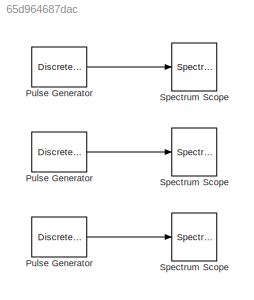
MODEL slx_65d964687dac
KIND model
BLOCK [DiscretePulseGenerator] Pulse Generator
  Period = 65536
  Ports = [0, 1]
  PulseWidth = 8192
  SampleTime = 7.629e-6
BLOCK [DiscretePulseGenerator] Pulse Generator 
  Period = 65536
  Ports = [0, 1]
  PulseWidth = 16384
  SampleTime = 7.629e-6
BLOCK [SpectrumAnalyzer] Spectrum Scope
  Ports = [1]
BLOCK [SpectrumAnalyzer] Spectrum Scope 
  Ports = [1]
NET Pulse Generator :1 -> Spectrum Scope :1, Spectrum Scope:1
LINE Pulse Generator:1 -> Spectrum Scope:1
note: NET lines group one-source signal fan-out (src -> all destinations, sorted); 1:1 wires keep LINE
